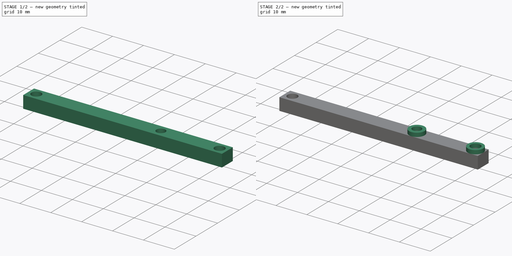
[diagram: build sequence overview — one tinted view per stage of 2, left to right]
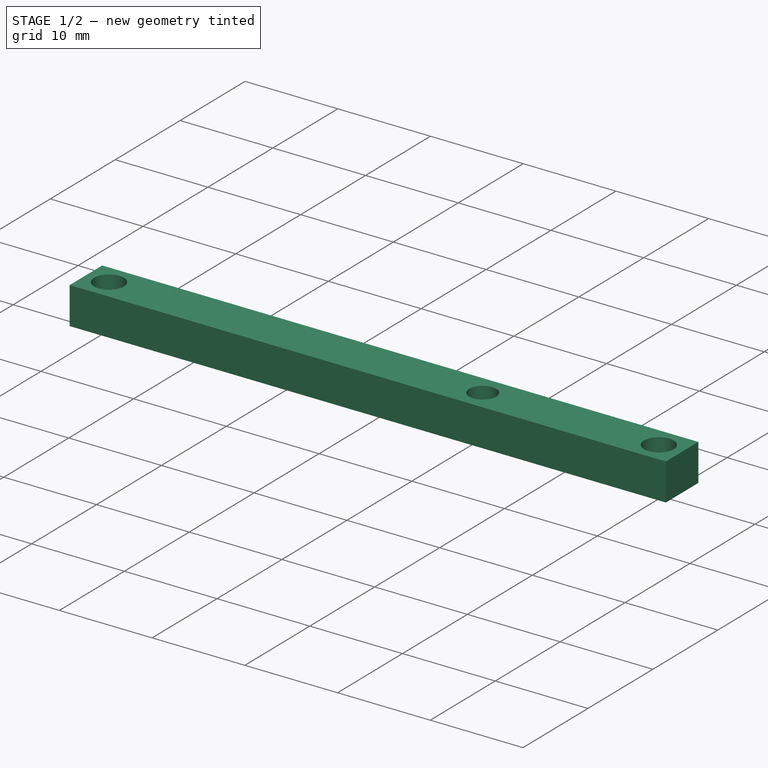
[diagram: stage 1 of 2 — iso view after this stage's code; geometry added in this stage tinted green]
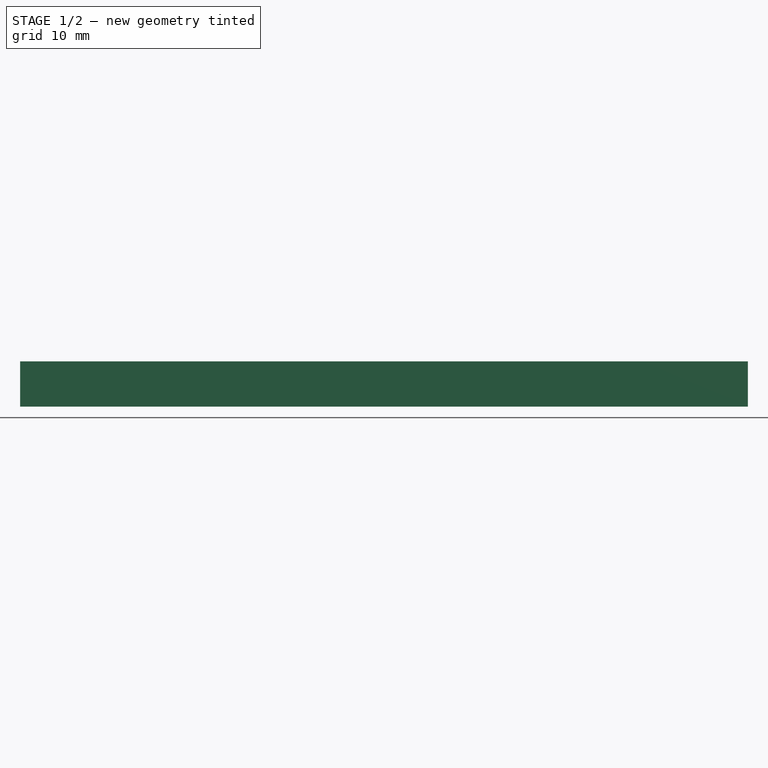
[diagram: stage 1 of 2 — front view after this stage's code; geometry added in this stage tinted green]
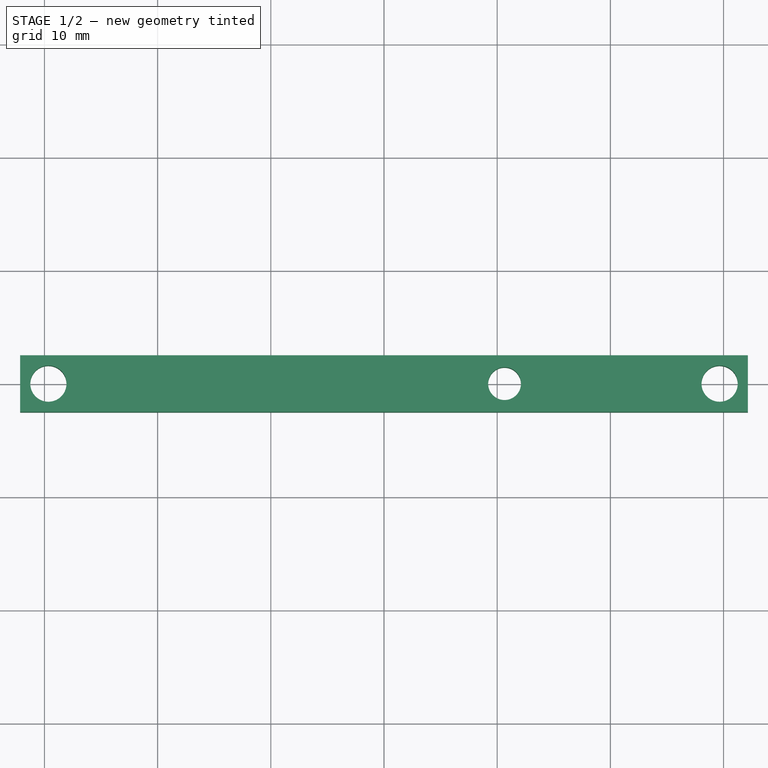
[diagram: stage 1 of 2 — top view after this stage's code; geometry added in this stage tinted green]
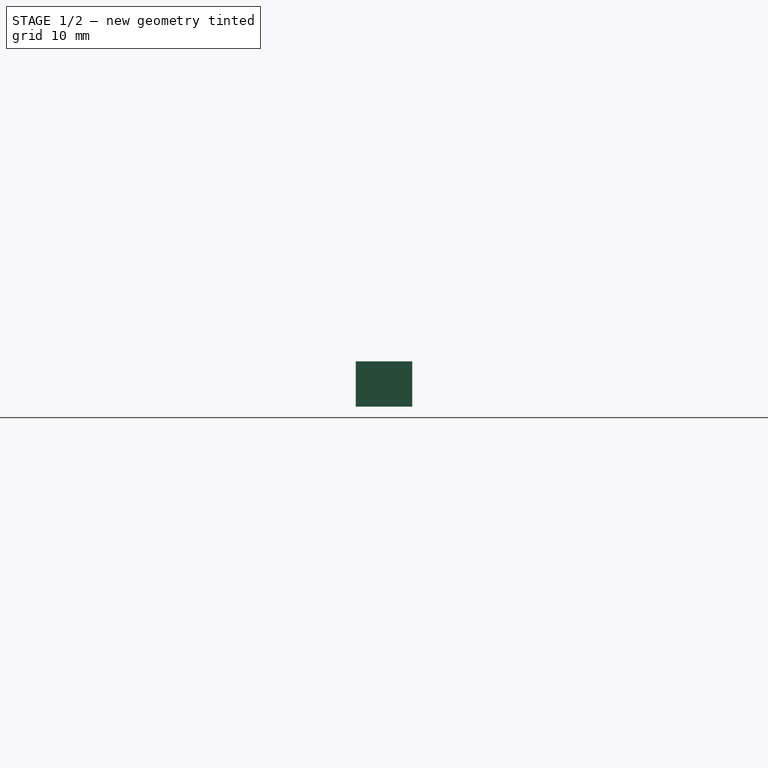
[diagram: stage 1 of 2 — right view after this stage's code; geometry added in this stage tinted green]
FCSTD DOCUMENT  (FreeCAD 0.18R14090 (Git))
Label: ZEndStopClip
License: All rights reserved
LicenseURL: http://en.wikipedia.org/wiki/All_rights_reserved
objects: Sketcher::SketchObject×3, PartDesign::Pad×2, PartDesign::Pocket×1, PartDesign::Body×1, App::Part×1
note: 10 computed .brp shape members not serialized (recipe doc carries the construction recipe); baked Part::Feature solids carry a one-line shape summary decoded from their .brp

FEATURE [Sketcher::SketchObject] Sketch  label="BaseSketch"
  MapMode = 5
  Placement = pos=(0,0,0) rot=(1,0,0;1.5708rad)
  Support = -> [XZ_Plane001]
  sketch-geometry (6):
    g0: LineSegment StartX=-27.15 StartY=0 StartZ=0 EndX=27.15 EndY=0 EndZ=0
    g1: LineSegment StartX=-32.15 StartY=-4 StartZ=0 EndX=32.15 EndY=-4 EndZ=0
    g2: LineSegment StartX=-32.15 StartY=-4 StartZ=0 EndX=-32.15 EndY=0 EndZ=0
    g3: LineSegment StartX=32.15 StartY=-4 StartZ=0 EndX=32.15 EndY=0 EndZ=0
    g4: LineSegment StartX=27.15 StartY=0 StartZ=0 EndX=32.15 EndY=0 EndZ=0
    g5: LineSegment StartX=-27.15 StartY=0 StartZ=0 EndX=-32.15 EndY=0 EndZ=0
  constraints (16):
    c: PointOnObject(g0,g-1)
    c: Symmetric(g0,g0,g-2)
    c: Distance(g0) = 54.3
    c: Symmetric(g1,g1,g-2)
    c: Coincident(g2,g1)
    c: Coincident(g3,g1)
    c: Vertical(g3)
    c: Vertical(g2)
    c: Equal(g2,g3)
    c: Coincident(g4,g0)
    c: Coincident(g4,g3)
    c: Horizontal(g4)
    c: Coincident(g5,g0)
    c: Coincident(g5,g2)
    c: Distance(g3) = 4
    c: Distance(g4) = 5
FEATURE [PartDesign::Pad] Pad  label="BasePad"
  Length = 5
  Length2 = 100
  Midplane = true
  Placement = pos=(0,0,0) rot=(1,0,0;1.5708rad)
  Profile = -> Sketch
  Type = 0
FEATURE [Sketcher::SketchObject] Sketch002  label="EndStopHolesSketch"
  ExternalGeometry = -> [Sketch]
  MapMode = 5
  Support = -> [XY_Plane001]
  sketch-geometry (6):
    g0: Circle CenterX=29.65 CenterY=0 CenterZ=0 NormalX=0 NormalY=0 NormalZ=1 AngleXU=0 Radius=1.6
    g1: Circle CenterX=10.65 CenterY=0 CenterZ=0 NormalX=0 NormalY=0 NormalZ=1 AngleXU=0 Radius=1.45
    g2: LineSegment [constr] StartX=10.65 StartY=0 StartZ=0 EndX=29.65 EndY=0 EndZ=0
    g3: LineSegment [constr] StartX=27.15 StartY=0 StartZ=0 EndX=29.65 EndY=0 EndZ=0
    g4: LineSegment [constr] StartX=29.65 StartY=0 StartZ=0 EndX=32.15 EndY=0 EndZ=0
    g5: Circle CenterX=-29.65 CenterY=0 CenterZ=0 NormalX=0 NormalY=0 NormalZ=1 AngleXU=0 Radius=1.6
  constraints (14):
    c: Coincident(g2,g1)
    c: Coincident(g2,g0)
    c: Horizontal(g2)
    c: Distance(g2) = 19
    c: Coincident(g3,g-3)
    c: Coincident(g4,g3)
    c: Coincident(g4,g-4)
    c: Equal(g3,g4)
    c: Horizontal(g3)
    c: Coincident(g0,g3)
    c: Symmetric(g0,g5,g-2)
    c: Equal(g0,g5)
    c: Radius(g5) = 1.6
    c: Radius(g1) = 1.45
FEATURE [PartDesign::Pocket] Pocket001  label="EndStopHolesPocket"
  BaseFeature = -> Pad
  Length = 5
  Length2 = 100
  Placement = pos=(0,0,0) rot=(1,0,0;1.5708rad)
  Profile = -> Sketch002
  Type = 1
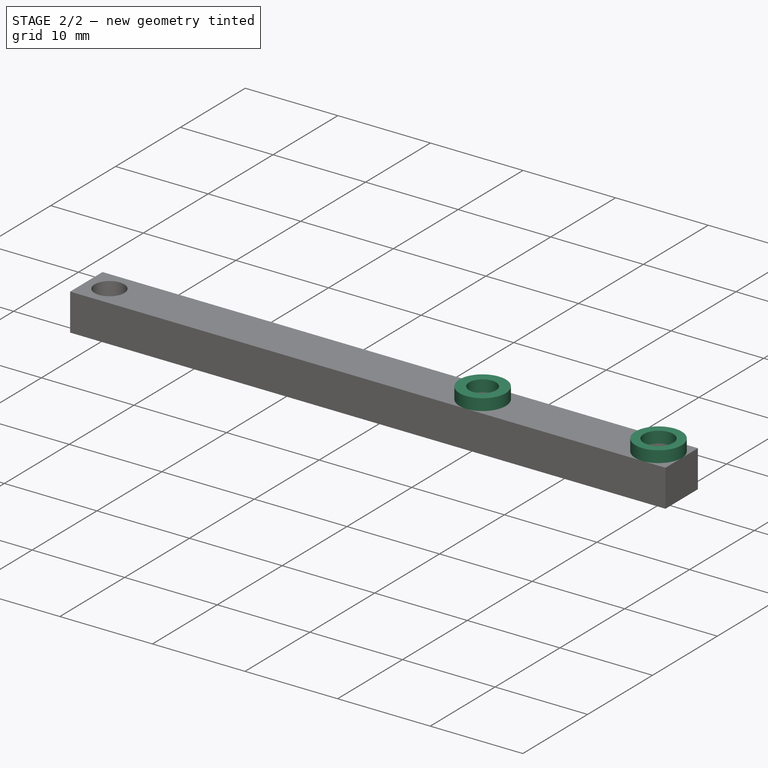
[diagram: stage 2 of 2 — iso view after this stage's code; geometry added in this stage tinted green]
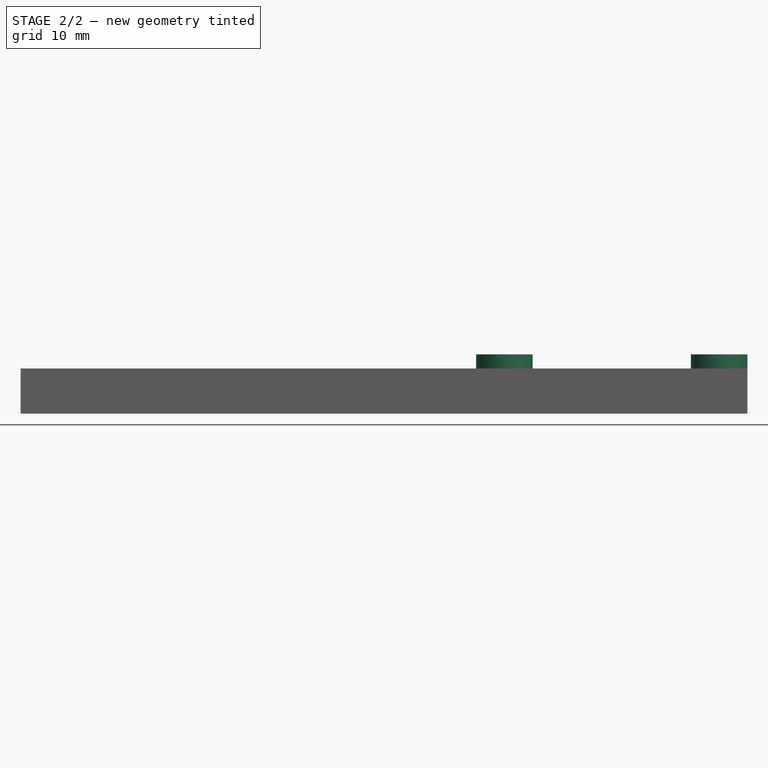
[diagram: stage 2 of 2 — front view after this stage's code; geometry added in this stage tinted green]
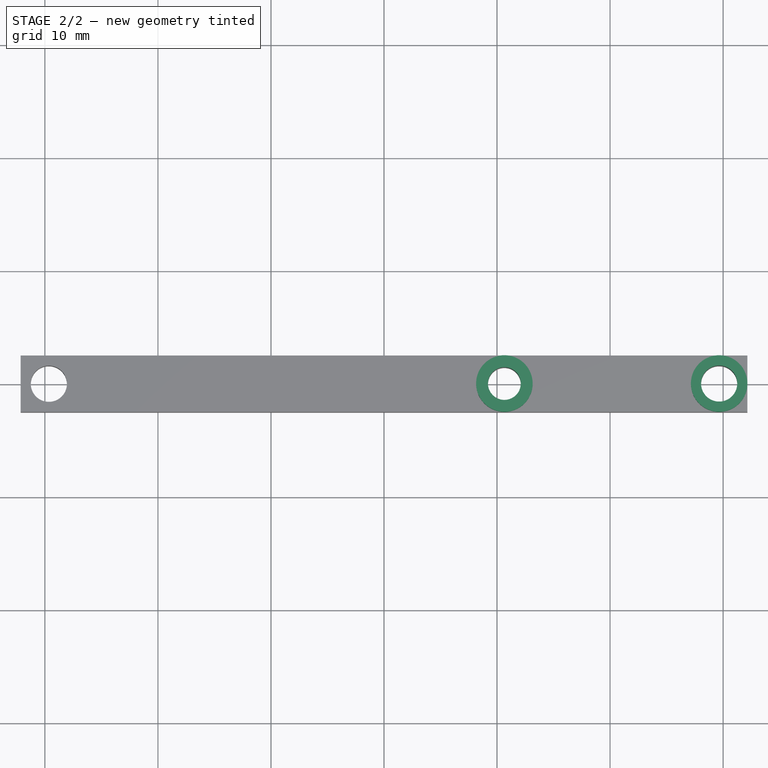
[diagram: stage 2 of 2 — top view after this stage's code; geometry added in this stage tinted green]
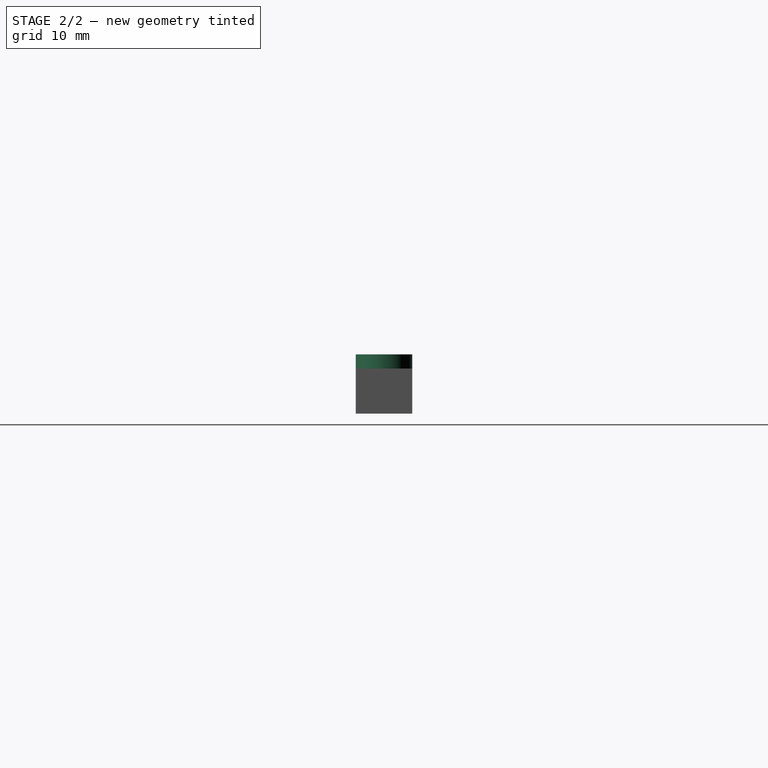
[diagram: stage 2 of 2 — right view after this stage's code; geometry added in this stage tinted green]
FEATURE [Sketcher::SketchObject] Sketch003  label="SpacersSketch"
  ExternalGeometry = -> [Sketch002]
  MapMode = 5
  Support = -> [XY_Plane001]
  sketch-geometry (4):
    g0: Circle CenterX=10.65 CenterY=0 CenterZ=0 NormalX=0 NormalY=0 NormalZ=1 AngleXU=0 Radius=1.45
    g1: Circle CenterX=29.65 CenterY=0 CenterZ=0 NormalX=0 NormalY=0 NormalZ=1 AngleXU=0 Radius=1.6
    g2: Circle CenterX=10.65 CenterY=0 CenterZ=0 NormalX=0 NormalY=0 NormalZ=1 AngleXU=0 Radius=2.5
    g3: Circle CenterX=29.65 CenterY=0 CenterZ=0 NormalX=0 NormalY=0 NormalZ=1 AngleXU=0 Radius=2.5
  constraints (8):
    c: Coincident(g0,g-4)
    c: Coincident(g1,g-3)
    c: Equal(g0,g-4)
    c: Equal(g1,g-3)
    c: Coincident(g2,g0)
    c: Coincident(g3,g1)
    c: Equal(g3,g2)
    c: Radius(g2) = 2.5
FEATURE [PartDesign::Pad] Pad001  label="SpacersPad"
  BaseFeature = -> Pocket001
  Length = 1.25
  Length2 = 100
  Placement = pos=(0,0,0) rot=(1,0,0;1.5708rad)
  Profile = -> Sketch003
  Type = 0
FEATURE [PartDesign::Body] Body  label="ZEndStopBody"
  Group = -> [Sketch,Pad,Sketch002,Pocket001,Sketch003,Pad001]
  Origin = -> Origin001
  Tip = -> Pad001
FEATURE [App::Part] Part  label="ZEndStopPart"
  Group = -> [Body]
  License = CC BY 3.0
  LicenseURL = http://creativecommons.org/licenses/by/3.0/
  Origin = -> Origin
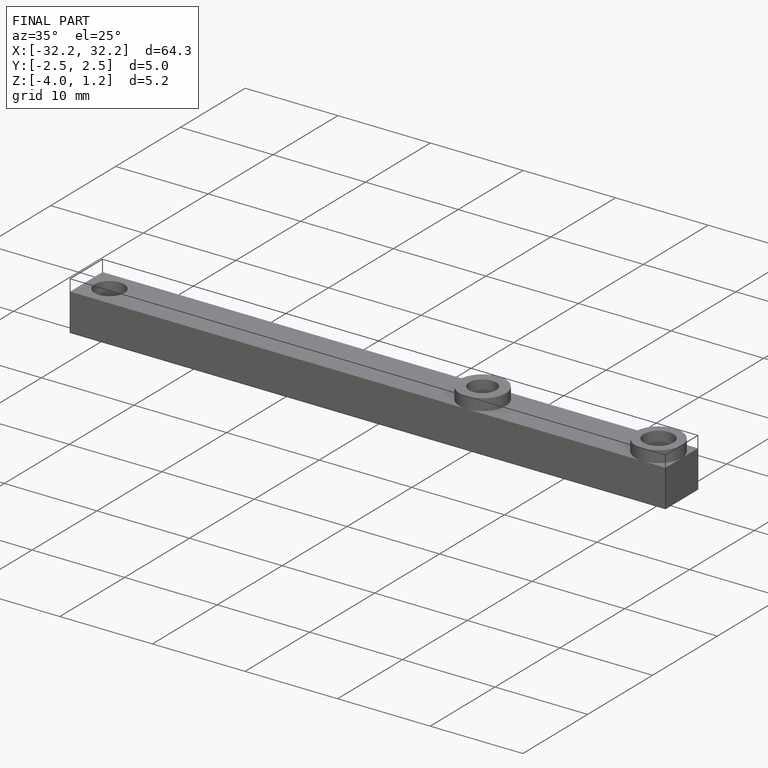
[diagram: finished part — iso view with bounding-box wireframe]
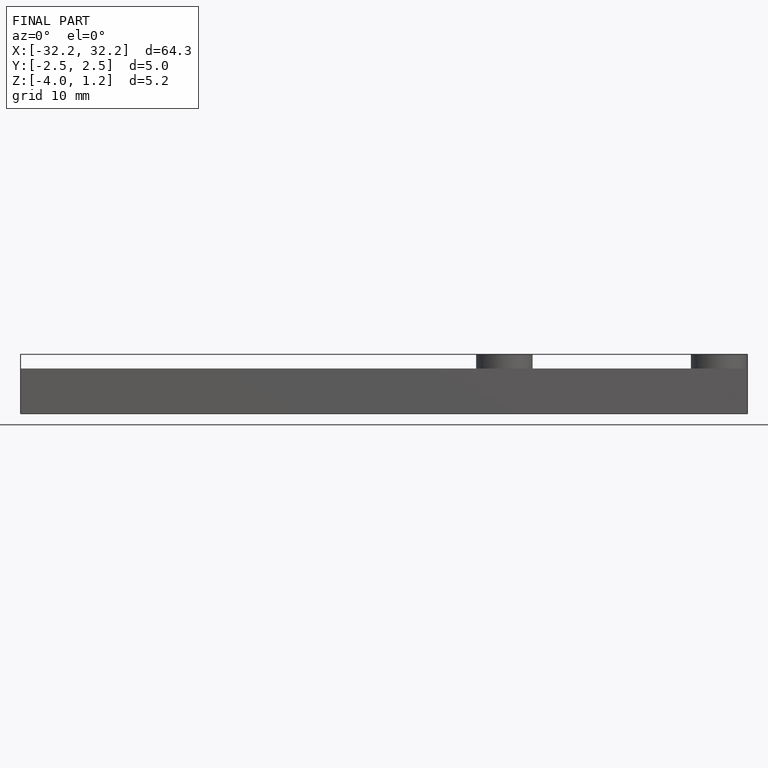
[diagram: finished part — front view with bounding-box wireframe]
